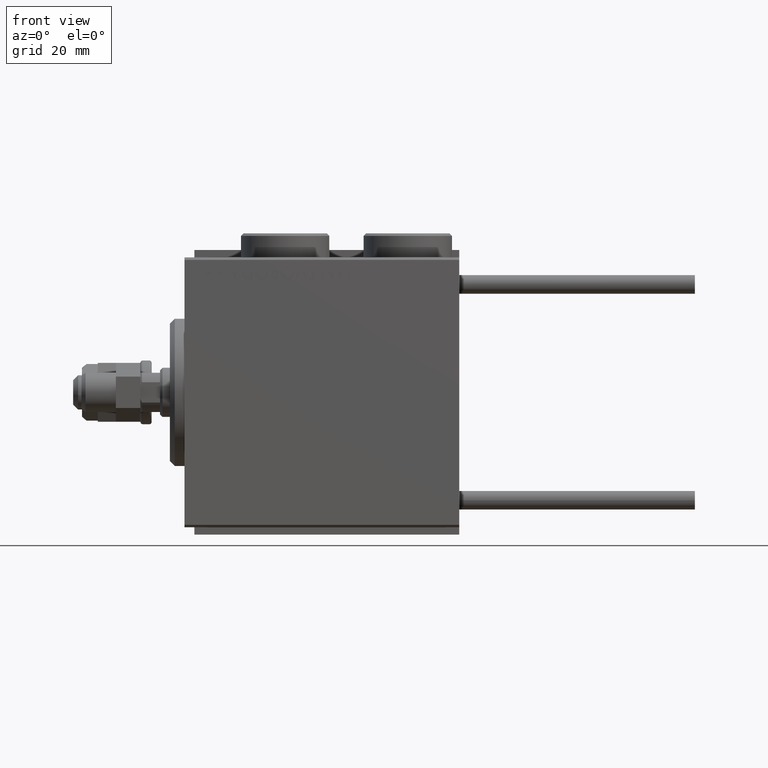
[diagram: clean part render]
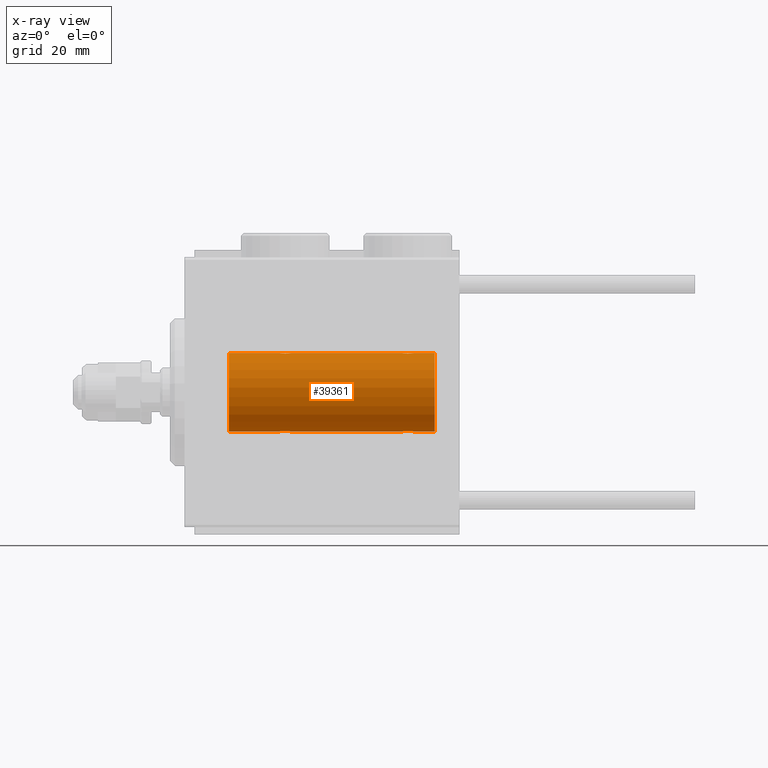
[diagram: x-ray — body ghosted, one internal face saturated and labeled with its STEP entity id]
A machine part, front view, then the same camera in x-ray: the body is ghosted and one INTERNAL B-rep face — a face not visible from any outside direction — is saturated and labeled: STEP entity #39361.
In plain terms, the highlighted cylindrical surface (partial cylindrical patch) has radius 8 mm, axis along (-1, -0, -0).
Its self-contained STEP definition (entity closure, byte-faithful):
#195 = LINE ( 'NONE', #24577, #13535 ) ;
#557 = VERTEX_POINT ( 'NONE', #30842 ) ;
#739 = CARTESIAN_POINT ( 'NONE',  ( 21.71666607977186914, -0.3297258132310516010, 7.994620111903504522 ) ) ;
#788 = CARTESIAN_POINT ( 'NONE',  ( 19.25000000000000000, -4.052102368803510290E-23, 7.999999999999998224 ) ) ;
#1003 = CIRCLE ( 'NONE', #35220, 7.999999999999998224 ) ;
#1164 = CARTESIAN_POINT ( 'NONE',  ( 19.50158244334252089, -0.7695044314719098333, -7.963745725343515325 ) ) ;
#1460 = CARTESIAN_POINT ( 'NONE',  ( 46.12714162834986098, -1.084361243153318943, -7.926301147147065684 ) ) ;
#1742 = CARTESIAN_POINT ( 'NONE',  ( 46.59165033467900230, -0.6303134207467945282, 7.976551562999473433 ) ) ;
#1956 = CARTESIAN_POINT ( 'NONE',  ( 21.59250917855271013, -0.6288424646912625926, -7.976670562295708145 ) ) ;
#2259 = CARTESIAN_POINT ( 'NONE',  ( 46.75000000000000000, -0.1632520343443067401, -8.000000000000000000 ) ) ;
#2270 = CARTESIAN_POINT ( 'NONE',  ( 44.73732994206308433, -0.9937204387496696434, 7.938174152191987076 ) ) ;
#3405 = DIRECTION ( 'NONE',  ( -1.000000000000000000, -0.000000000000000000, -0.000000000000000000 ) ) ;
#3873 = DIRECTION ( 'NONE',  ( -1.000000000000000000, -0.000000000000000000, -0.000000000000000000 ) ) ;
#3925 = VERTEX_POINT ( 'NONE', #49778 ) ;
#4255 = EDGE_CURVE ( 'NONE', #46921, #45665, #12974, .T. ) ;
#4470 = LINE ( 'NONE', #25108, #15973 ) ;
#4755 = CARTESIAN_POINT ( 'NONE',  ( 19.67312100220859605, -0.9409612394163516802, 7.944680966683013601 ) ) ;
#5023 = CARTESIAN_POINT ( 'NONE',  ( 21.75000000000000355, -5.238855365914187376E-16, 7.999999999999998224 ) ) ;
#5161 = DIRECTION ( 'NONE',  ( -1.000000000000000000, 0.000000000000000000, 0.000000000000000000 ) ) ;
#5298 = CARTESIAN_POINT ( 'NONE',  ( 20.82701716371747480, -1.217515856520238637, 7.907063872927298398 ) ) ;
#5570 = CARTESIAN_POINT ( 'NONE',  ( 19.50041313324087611, -0.7680324342712183672, 7.963892330120039276 ) ) ;
#5633 = CARTESIAN_POINT ( 'NONE',  ( 46.75000000000000000, 2.184524186358155277E-16, 7.999999999999998224 ) ) ;
#6054 = EDGE_CURVE ( 'NONE', #557, #12385, #42889, .T. ) ;
#6256 = CARTESIAN_POINT ( 'NONE',  ( 19.28333392022813797, -0.3297258132310537104, -7.994620111903500970 ) ) ;
#6269 = ORIENTED_EDGE ( 'NONE', *, *, #4255, .T. ) ;
#6288 = EDGE_CURVE ( 'NONE', #52806, #42039, #1003, .T. ) ;
#6308 = CARTESIAN_POINT ( 'NONE',  ( 46.12943792732229298, -1.092287957405115639, 7.925333492638530153 ) ) ;
#6609 = CARTESIAN_POINT ( 'NONE',  ( 51.00000000000000711, 0.000000000000000000, 7.999999999999998224 ) ) ;
#7073 = CARTESIAN_POINT ( 'NONE',  ( 46.49841755665749332, -0.7695044314719045042, 7.963745725343520654 ) ) ;
#7585 = CARTESIAN_POINT ( 'NONE',  ( 19.25000000000000711, -3.107364149877583097E-15, -7.999999999999998224 ) ) ;
#7916 = LINE ( 'NONE', #24252, #41746 ) ;
#9213 = AXIS2_PLACEMENT_3D ( 'NONE', #13665, #34268, #45543 ) ;
#10864 = ORIENTED_EDGE ( 'NONE', *, *, #28809, .F. ) ;
#11255 = LINE ( 'NONE', #42619, #44338 ) ;
#12266 = EDGE_CURVE ( 'NONE', #3925, #42427, #38824, .T. ) ;
#12385 = VERTEX_POINT ( 'NONE', #44510 ) ;
#12806 = CARTESIAN_POINT ( 'NONE',  ( 19.40749082144729343, -0.6288424646912649241, 7.976670562295706368 ) ) ;
#12974 = B_SPLINE_CURVE_WITH_KNOTS ( 'NONE', 3,
 ( #23163, #43002, #22385, #19138, #26911, #51795, #2270, #47793, #15121, #39227, #38976, #31443, #27423, #6308, #18635, #7073, #1742, #34952, #18106, #50773 ),
 .UNSPECIFIED., .F., .F.,
 ( 4, 2, 2, 2, 2, 2, 2, 2, 2, 4 ),
 ( 0.003914068143704962574, 0.004403205918210084668, 0.004892343692715206763, 0.005136912579967760871, 0.005381481467220314979, 0.005870619241725421461, 0.006359757016230529678, 0.006848894790735636159, 0.007338032565240744376, 0.007827170339745850858 ),
 .UNSPECIFIED. ) ;
#13157 = CARTESIAN_POINT ( 'NONE',  ( 51.00000000000000711, 0.000000000000000000, 0.000000000000000000 ) ) ;
#13350 = CARTESIAN_POINT ( 'NONE',  ( 19.25000000000000355, -0.1632520343443080724, 8.000000000000000000 ) ) ;
#13535 = VECTOR ( 'NONE', #24847, 1000.000000000000000 ) ;
#13665 = CARTESIAN_POINT ( 'NONE',  ( 51.00000000000000711, 0.000000000000000000, 0.000000000000000000 ) ) ;
#13882 = CARTESIAN_POINT ( 'NONE',  ( 19.73732994206309499, -0.9937204387496718638, 7.938174152191987076 ) ) ;
#14039 = CARTESIAN_POINT ( 'NONE',  ( 20.66599605016009988, -1.249894643705219854, -7.901756981264366431 ) ) ;
#14203 = CARTESIAN_POINT ( 'NONE',  ( 44.25000000000000000, -4.052102368803510290E-23, 7.999999999999998224 ) ) ;
#14298 = CARTESIAN_POINT ( 'NONE',  ( 20.82830666114114848, -1.217212176555599434, -7.907113222863026536 ) ) ;
#14336 = CARTESIAN_POINT ( 'NONE',  ( 46.32687899779141816, -0.9409612394163474614, -7.944680966683013601 ) ) ;
#15121 = CARTESIAN_POINT ( 'NONE',  ( 44.94455374345275800, -1.122809931695426311, 7.920878051565289901 ) ) ;
#15820 = CARTESIAN_POINT ( 'NONE',  ( 21.75000000000000355, -5.238855365914187376E-16, 7.999999999999998224 ) ) ;
#15973 = VECTOR ( 'NONE', #28312, 1000.000000000000000 ) ;
#16822 = CARTESIAN_POINT ( 'NONE',  ( 19.94455374345276155, -1.122809931695431640, 7.920878051565288125 ) ) ;
#16987 = ORIENTED_EDGE ( 'NONE', *, *, #23341, .T. ) ;
#17090 = CARTESIAN_POINT ( 'NONE',  ( 19.28284287980512346, -0.3279446529214878892, 7.994696267489722175 ) ) ;
#17168 = DIRECTION ( 'NONE',  ( 0.000000000000000000, 0.000000000000000000, 1.000000000000000000 ) ) ;
#17816 = CARTESIAN_POINT ( 'NONE',  ( 44.40834966532099060, -0.6303134207468006345, -7.976551562999471656 ) ) ;
#18051 = CARTESIAN_POINT ( 'NONE',  ( 21.71715712019488009, -0.3279446529214856687, -7.994696267489723951 ) ) ;
#18093 = CARTESIAN_POINT ( 'NONE',  ( 46.05544625654727042, -1.122809931695432972, -7.920878051565292566 ) ) ;
#18106 = CARTESIAN_POINT ( 'NONE',  ( 46.75000000000000711, -0.1654128203352883963, 7.999999999999996447 ) ) ;
#18316 = CARTESIAN_POINT ( 'NONE',  ( 21.12714162834985387, -1.084361243153318721, -7.926301147147063908 ) ) ;
#18513 = DIRECTION ( 'NONE',  ( -1.000000000000000000, -0.000000000000000000, -0.000000000000000000 ) ) ;
#18635 = CARTESIAN_POINT ( 'NONE',  ( 46.26815485876451817, -0.9994562523959094058, 7.938165420771274405 ) ) ;
#18726 = CARTESIAN_POINT ( 'NONE',  ( 51.00000000000000711, 9.797174393178823685E-16, -7.999999999999998224 ) ) ;
#18873 = CARTESIAN_POINT ( 'NONE',  ( 44.25000000000000711, -5.932357478216049125E-15, -7.999999999999998224 ) ) ;
#19046 = ORIENTED_EDGE ( 'NONE', *, *, #42283, .T. ) ;
#19138 = CARTESIAN_POINT ( 'NONE',  ( 44.40749082144728277, -0.6288424646912613714, 7.976670562295706368 ) ) ;
#20836 = CARTESIAN_POINT ( 'NONE',  ( 19.25000000000000000, -4.052102368803510290E-23, 7.999999999999998224 ) ) ;
#21511 = AXIS2_PLACEMENT_3D ( 'NONE', #46429, #5161, #24994 ) ;
#21539 = CARTESIAN_POINT ( 'NONE',  ( 19.40834966532100481, -0.6303134207467991912, -7.976551562999473433 ) ) ;
#22385 = CARTESIAN_POINT ( 'NONE',  ( 44.28284287980513056, -0.3279446529214851691, 7.994696267489722175 ) ) ;
#22593 = CARTESIAN_POINT ( 'NONE',  ( 20.17298283628253230, -1.217515856520239970, -7.907063872927298398 ) ) ;
#22890 = CARTESIAN_POINT ( 'NONE',  ( 46.59250917855270302, -0.6288424646912637028, -7.976670562295706368 ) ) ;
#22984 = VERTEX_POINT ( 'NONE', #38021 ) ;
#22990 = ORIENTED_EDGE ( 'NONE', *, *, #12266, .T. ) ;
#23163 = CARTESIAN_POINT ( 'NONE',  ( 44.25000000000000000, -4.052102368803510290E-23, 7.999999999999998224 ) ) ;
#23206 = EDGE_CURVE ( 'NONE', #52806, #22984, #40108, .T. ) ;
#23341 = EDGE_CURVE ( 'NONE', #42229, #3925, #4470, .T. ) ;
#23907 = VERTEX_POINT ( 'NONE', #15820 ) ;
#24252 = CARTESIAN_POINT ( 'NONE',  ( 51.00000000000000711, 0.000000000000000000, 7.999999999999998224 ) ) ;
#24577 = CARTESIAN_POINT ( 'NONE',  ( 51.00000000000000711, 0.000000000000000000, 7.999999999999998224 ) ) ;
#24847 = DIRECTION ( 'NONE',  ( -1.000000000000000000, -0.000000000000000000, -0.000000000000000000 ) ) ;
#24994 = DIRECTION ( 'NONE',  ( 0.000000000000000000, 0.000000000000000000, 1.000000000000000000 ) ) ;
#25108 = CARTESIAN_POINT ( 'NONE',  ( 51.00000000000000711, 9.797174393178823685E-16, -7.999999999999998224 ) ) ;
#25236 = ORIENTED_EDGE ( 'NONE', *, *, #23206, .T. ) ;
#25544 = CARTESIAN_POINT ( 'NONE',  ( 21.75000000000000355, 9.797173987965608855E-16, -7.999999999999998224 ) ) ;
#25657 = CARTESIAN_POINT ( 'NONE',  ( 19.87285837165014613, -1.084361243153319387, 7.926301147147063908 ) ) ;
#25821 = CARTESIAN_POINT ( 'NONE',  ( 20.33559448851098850, -1.250104850332076634, -7.901723728054487417 ) ) ;
#25859 = CARTESIAN_POINT ( 'NONE',  ( 46.26267005793690146, -0.9937204387496705316, -7.938174152191988853 ) ) ;
#26124 = CARTESIAN_POINT ( 'NONE',  ( 44.25000000000002132, -0.1654128203352934201, -7.999999999999998224 ) ) ;
#26190 = CARTESIAN_POINT ( 'NONE',  ( 21.26815485876451461, -0.9994562523959116263, 7.938165420771274405 ) ) ;
#26265 = VECTOR ( 'NONE', #3405, 1000.000000000000000 ) ;
#26602 = CARTESIAN_POINT ( 'NONE',  ( 21.75000000000000355, -0.1632520343443068511, -7.999999999999998224 ) ) ;
#26642 = CARTESIAN_POINT ( 'NONE',  ( 45.82830666114114848, -1.217212176555600989, -7.907113222863030089 ) ) ;
#26900 = CARTESIAN_POINT ( 'NONE',  ( 44.73184514123551025, -0.9994562523959168443, -7.938165420771277958 ) ) ;
#26911 = CARTESIAN_POINT ( 'NONE',  ( 44.50041313324088321, -0.7680324342712147034, 7.963892330120037499 ) ) ;
#27423 = CARTESIAN_POINT ( 'NONE',  ( 45.82701716371747125, -1.217515856520235973, 7.907063872927300174 ) ) ;
#27570 = VERTEX_POINT ( 'NONE', #788 ) ;
#28312 = DIRECTION ( 'NONE',  ( -1.000000000000000000, -0.000000000000000000, -0.000000000000000000 ) ) ;
#28316 = EDGE_CURVE ( 'NONE', #27570, #12385, #7916, .T. ) ;
#28669 = ORIENTED_EDGE ( 'NONE', *, *, #30109, .F. ) ;
#28809 = EDGE_CURVE ( 'NONE', #42039, #45665, #195, .T. ) ;
#29405 = CARTESIAN_POINT ( 'NONE',  ( 20.66440551148902571, -1.250104850332075523, 7.901723728054487417 ) ) ;
#29721 = FACE_OUTER_BOUND ( 'NONE', #51499, .T. ) ;
#29863 = CARTESIAN_POINT ( 'NONE',  ( 44.87056207267771413, -1.092287957405121634, -7.925333492638528377 ) ) ;
#30099 = CARTESIAN_POINT ( 'NONE',  ( 21.49958686675913810, -0.7680324342712174790, -7.963892330120039276 ) ) ;
#30109 = EDGE_CURVE ( 'NONE', #46921, #23907, #11255, .T. ) ;
#30140 = CARTESIAN_POINT ( 'NONE',  ( 45.33559448851095652, -1.250104850332078854, -7.901723728054487417 ) ) ;
#30206 = CARTESIAN_POINT ( 'NONE',  ( 20.17169333885885862, -1.217212176555599878, 7.907113222863031865 ) ) ;
#30569 = ORIENTED_EDGE ( 'NONE', *, *, #6288, .F. ) ;
#30618 = CARTESIAN_POINT ( 'NONE',  ( 21.26267005793691212, -0.9937204387496720859, -7.938174152191990629 ) ) ;
#30657 = CARTESIAN_POINT ( 'NONE',  ( 45.66599605016010344, -1.249894643705221853, -7.901756981264364654 ) ) ;
#30842 = CARTESIAN_POINT ( 'NONE',  ( 9.000000000000001776, 9.797174393178823685E-16, -7.999999999999998224 ) ) ;
#30924 = CARTESIAN_POINT ( 'NONE',  ( 44.50158244334253510, -0.7695044314719126088, -7.963745725343517101 ) ) ;
#31443 = CARTESIAN_POINT ( 'NONE',  ( 45.66440551148901505, -1.250104850332072859, 7.901723728054492746 ) ) ;
#33148 = CARTESIAN_POINT ( 'NONE',  ( 21.49841755665748622, -0.7695044314719065026, 7.963745725343518878 ) ) ;
#34144 = CARTESIAN_POINT ( 'NONE',  ( 44.28333392022813797, -0.3297258132310548762, -7.994620111903502746 ) ) ;
#34268 = DIRECTION ( 'NONE',  ( -1.000000000000000000, -0.000000000000000000, -0.000000000000000000 ) ) ;
#34375 = CARTESIAN_POINT ( 'NONE',  ( 19.87056207267771413, -1.092287957405118970, -7.925333492638526600 ) ) ;
#34636 = CARTESIAN_POINT ( 'NONE',  ( 19.73184514123549249, -0.9994562523959139577, -7.938165420771276182 ) ) ;
#34952 = CARTESIAN_POINT ( 'NONE',  ( 46.71666607977186914, -0.3297258132310492140, 7.994620111903504522 ) ) ;
#35220 = AXIS2_PLACEMENT_3D ( 'NONE', #13157, #37505, #17168 ) ;
#37431 = CARTESIAN_POINT ( 'NONE',  ( 21.59165033467900940, -0.6303134207467971928, 7.976551562999473433 ) ) ;
#37505 = DIRECTION ( 'NONE',  ( -1.000000000000000000, 0.000000000000000000, 0.000000000000000000 ) ) ;
#37976 = CARTESIAN_POINT ( 'NONE',  ( 21.75000000000000711, -0.1654128203352884796, 8.000000000000001776 ) ) ;
#38021 = CARTESIAN_POINT ( 'NONE',  ( 46.74999999999999289, 9.797173987957720246E-16, -7.999999999999998224 ) ) ;
#38165 = CARTESIAN_POINT ( 'NONE',  ( 46.49958686675912389, -0.7680324342712128161, -7.963892330120035723 ) ) ;
#38428 = DIRECTION ( 'NONE',  ( -1.000000000000000000, -0.000000000000000000, -0.000000000000000000 ) ) ;
#38660 = CARTESIAN_POINT ( 'NONE',  ( 21.05544625654724200, -1.122809931695431640, -7.920878051565290789 ) ) ;
#38824 = B_SPLINE_CURVE_WITH_KNOTS ( 'NONE', 3,
 ( #25544, #26602, #18051, #1956, #30099, #51233, #30618, #18316, #38660, #14298, #14039, #25821, #22593, #34375, #34636, #1164, #21539, #6256, #42158, #46966 ),
 .UNSPECIFIED., .F., .F.,
 ( 4, 2, 2, 2, 2, 2, 2, 2, 2, 4 ),
 ( 0.003914068143704951298, 0.004403205918210062117, 0.004892343692715172936, 0.005136912579967725309, 0.005381481467220276815, 0.005870619241725390236, 0.006359757016230503657, 0.006848894790735617077, 0.007338032565240730498, 0.007827170339745843919 ),
 .UNSPECIFIED. ) ;
#38976 = CARTESIAN_POINT ( 'NONE',  ( 45.33400394983990367, -1.249894643705215858, 7.901756981264366431 ) ) ;
#39227 = CARTESIAN_POINT ( 'NONE',  ( 45.17169333885885152, -1.217212176555594771, 7.907113222863028312 ) ) ;
#39361 = ADVANCED_FACE ( 'NONE', ( #29721 ), #42057, .F. ) ;
#40038 = ORIENTED_EDGE ( 'NONE', *, *, #51990, .T. ) ;
#40108 = LINE ( 'NONE', #18726, #26265 ) ;
#40543 = B_SPLINE_CURVE_WITH_KNOTS ( 'NONE', 3,
 ( #20836, #13350, #17090, #12806, #5570, #4755, #13882, #25657, #16822, #30206, #46553, #29405, #5298, #45763, #26190, #33148, #37431, #739, #37976, #5023 ),
 .UNSPECIFIED., .F., .F.,
 ( 4, 2, 2, 2, 2, 2, 2, 2, 2, 4 ),
 ( 0.003914068143704968646, 0.004403205918210080332, 0.004892343692715191150, 0.005136912579967747861, 0.005381481467220303704, 0.005870619241725416257, 0.006359757016230527943, 0.006848894790735639629, 0.007338032565240751315, 0.007827170339745863001 ),
 .UNSPECIFIED. ) ;
#41746 = VECTOR ( 'NONE', #3873, 1000.000000000000000 ) ;
#42039 = VERTEX_POINT ( 'NONE', #6609 ) ;
#42043 = VECTOR ( 'NONE', #38428, 1000.000000000000000 ) ;
#42057 = CYLINDRICAL_SURFACE ( 'NONE', #9213, 7.999999999999998224 ) ;
#42158 = CARTESIAN_POINT ( 'NONE',  ( 19.25000000000000711, -0.1654128203352910609, -7.999999999999998224 ) ) ;
#42229 = VERTEX_POINT ( 'NONE', #18873 ) ;
#42283 = EDGE_CURVE ( 'NONE', #22984, #42229, #42841, .T. ) ;
#42427 = VERTEX_POINT ( 'NONE', #7585 ) ;
#42466 = CARTESIAN_POINT ( 'NONE',  ( 51.00000000000000711, 9.797174393178823685E-16, -7.999999999999998224 ) ) ;
#42619 = CARTESIAN_POINT ( 'NONE',  ( 51.00000000000000711, 0.000000000000000000, 7.999999999999998224 ) ) ;
#42841 = B_SPLINE_CURVE_WITH_KNOTS ( 'NONE', 3,
 ( #50491, #2259, #51019, #22890, #38165, #14336, #25859, #1460, #18093, #26642, #30657, #30140, #47006, #29863, #26900, #30924, #17816, #34144, #26124, #47267 ),
 .UNSPECIFIED., .F., .F.,
 ( 4, 2, 2, 2, 2, 2, 2, 2, 2, 4 ),
 ( 0.003914068143704942625, 0.004403205918210042168, 0.004892343692715140843, 0.005136912579967698421, 0.005381481467220255999, 0.005870619241725370287, 0.006359757016230484575, 0.006848894790735598863, 0.007338032565240713151, 0.007827170339745828306 ),
 .UNSPECIFIED. ) ;
#42889 = CIRCLE ( 'NONE', #21511, 7.999999999999998224 ) ;
#43002 = CARTESIAN_POINT ( 'NONE',  ( 44.25000000000000000, -0.1632520343443069621, 8.000000000000000000 ) ) ;
#44039 = CARTESIAN_POINT ( 'NONE',  ( 51.00000000000000711, 9.797174393178823685E-16, -7.999999999999998224 ) ) ;
#44338 = VECTOR ( 'NONE', #18513, 1000.000000000000000 ) ;
#44510 = CARTESIAN_POINT ( 'NONE',  ( 9.000000000000001776, 0.000000000000000000, 7.999999999999998224 ) ) ;
#45520 = ORIENTED_EDGE ( 'NONE', *, *, #51793, .T. ) ;
#45543 = DIRECTION ( 'NONE',  ( 0.000000000000000000, 0.000000000000000000, 1.000000000000000000 ) ) ;
#45665 = VERTEX_POINT ( 'NONE', #5633 ) ;
#45763 = CARTESIAN_POINT ( 'NONE',  ( 21.12943792732229298, -1.092287957405117194, 7.925333492638531929 ) ) ;
#46429 = CARTESIAN_POINT ( 'NONE',  ( 9.000000000000001776, 0.000000000000000000, 0.000000000000000000 ) ) ;
#46553 = CARTESIAN_POINT ( 'NONE',  ( 20.33400394983990722, -1.249894643705219410, 7.901756981264364654 ) ) ;
#46751 = LINE ( 'NONE', #42466, #42043 ) ;
#46921 = VERTEX_POINT ( 'NONE', #14203 ) ;
#46966 = CARTESIAN_POINT ( 'NONE',  ( 19.25000000000000711, -3.107364149877583097E-15, -7.999999999999998224 ) ) ;
#47006 = CARTESIAN_POINT ( 'NONE',  ( 45.17298283628253586, -1.217515856520241968, -7.907063872927295733 ) ) ;
#47267 = CARTESIAN_POINT ( 'NONE',  ( 44.25000000000000711, -5.932357478216049125E-15, -7.999999999999998224 ) ) ;
#47793 = CARTESIAN_POINT ( 'NONE',  ( 44.87285837165013902, -1.084361243153316945, 7.926301147147065684 ) ) ;
#49778 = CARTESIAN_POINT ( 'NONE',  ( 21.75000000000000355, 9.797173987965608855E-16, -7.999999999999998224 ) ) ;
#50491 = CARTESIAN_POINT ( 'NONE',  ( 46.74999999999999289, 9.797173987957720246E-16, -7.999999999999998224 ) ) ;
#50773 = CARTESIAN_POINT ( 'NONE',  ( 46.75000000000000000, 2.184524186358155277E-16, 7.999999999999998224 ) ) ;
#51019 = CARTESIAN_POINT ( 'NONE',  ( 46.71715712019487654, -0.3279446529214866679, -7.994696267489720398 ) ) ;
#51233 = CARTESIAN_POINT ( 'NONE',  ( 21.32687899779140750, -0.9409612394163509030, -7.944680966683015377 ) ) ;
#51246 = ORIENTED_EDGE ( 'NONE', *, *, #6054, .T. ) ;
#51499 = EDGE_LOOP ( 'NONE', ( #30569, #25236, #19046, #16987, #22990, #40038, #51246, #52750, #45520, #28669, #6269, #10864 ) ) ;
#51793 = EDGE_CURVE ( 'NONE', #27570, #23907, #40543, .T. ) ;
#51795 = CARTESIAN_POINT ( 'NONE',  ( 44.67312100220858184, -0.9409612394163470173, 7.944680966683011825 ) ) ;
#51990 = EDGE_CURVE ( 'NONE', #42427, #557, #46751, .T. ) ;
#52750 = ORIENTED_EDGE ( 'NONE', *, *, #28316, .F. ) ;
#52806 = VERTEX_POINT ( 'NONE', #44039 ) ;